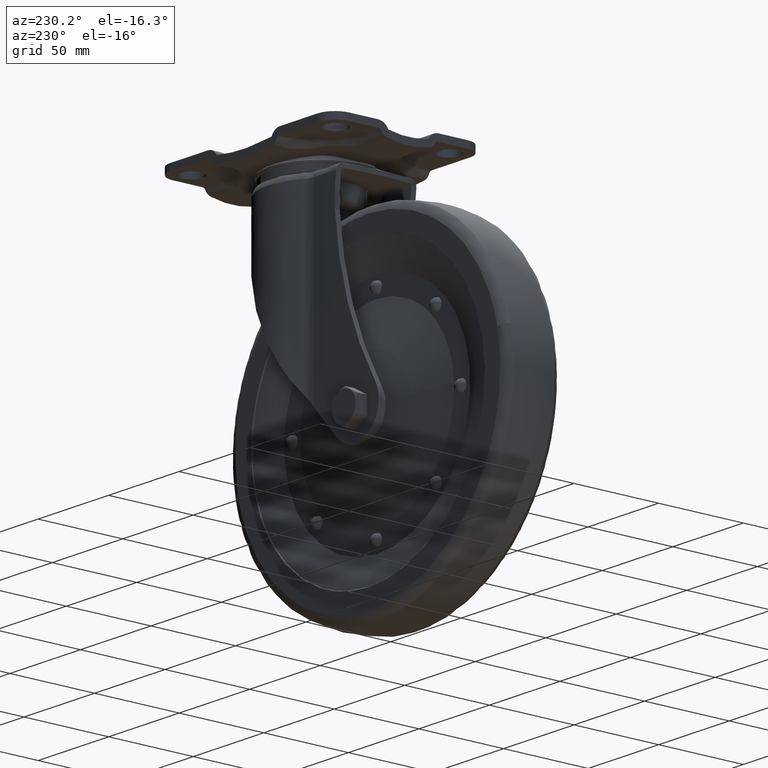
[diagram: clean part render]
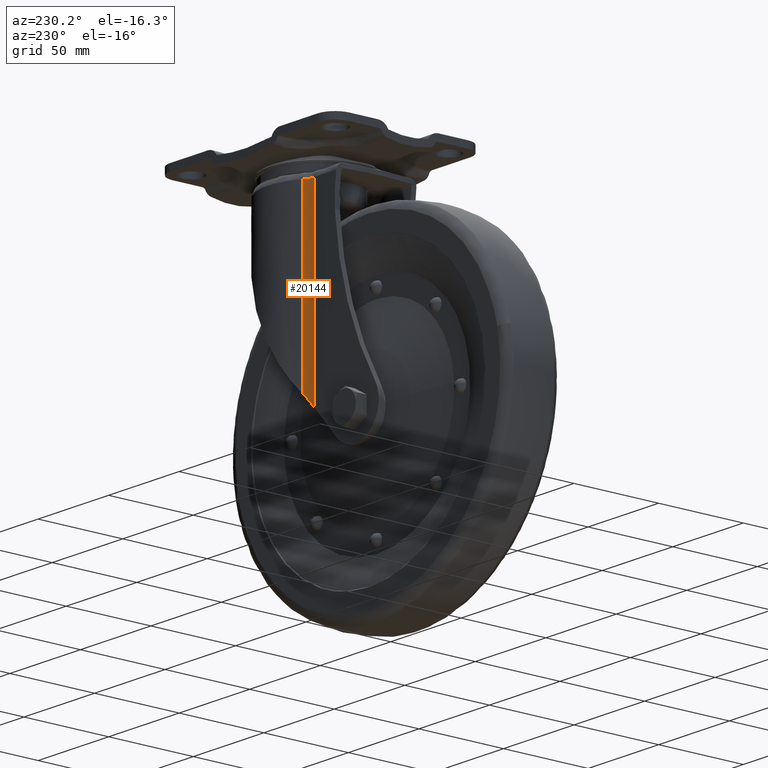
[diagram: same view with one face highlighted and labeled with its STEP entity id]
A machine part, auxiliary view. The second image highlights one B-rep face of the part: STEP entity #20144.
In plain terms, the highlighted face is a freeform B-spline surface patch.
Its self-contained STEP definition (entity closure, byte-faithful):
#20080=CARTESIAN_POINT('',(-17.990495252062956,25.681734473929325,-131.215919056523970));
#20081=CARTESIAN_POINT('',(-17.990495252062956,25.681734473929325,-16.785600623586959));
#20082=CARTESIAN_POINT('',(-20.827834715318321,23.518423796854872,-131.215919056523920));
#20083=CARTESIAN_POINT('',(-20.827834715318321,23.518423796854872,-16.785600623586962));
#20084=CARTESIAN_POINT('',(-24.393740353657712,23.639771618219051,-131.215919056523860));
#20085=CARTESIAN_POINT('',(-24.393740353657712,23.639771618219051,-16.785600623586962));
#20093=(BOUNDED_SURFACE()B_SPLINE_SURFACE(1,2,((#20080,#20082,#20084),(#20081,#20083,#20085)),.UNSPECIFIED.,.F.,.F.,.U.)B_SPLINE_SURFACE_WITH_KNOTS((2,2),(3,3),(0.0,114.430318432937000),(0.0,6.922230103835212),.UNSPECIFIED.)GEOMETRIC_REPRESENTATION_ITEM()RATIONAL_B_SPLINE_SURFACE(((0.997687987550156,0.939337078117443,0.996986477087792),(0.997687987550156,0.939337078117443,0.996986477087792)))REPRESENTATION_ITEM('')SURFACE());
#20094=CARTESIAN_POINT('',(-24.087698548467049,23.634044442204051,-19.576584000000050));
#20095=VERTEX_POINT('',#20094);
#20096=CARTESIAN_POINT('',(-24.087698548467049,23.634044442203351,-128.493008445389190));
#20097=VERTEX_POINT('',#20096);
#20098=CARTESIAN_POINT('',(-24.087698548467049,23.634044442204051,-19.576584000000050));
#20099=CARTESIAN_POINT('',(-24.087698548467049,23.634044442203351,-128.493008445389190));
#20100=QUASI_UNIFORM_CURVE('',1,(#20098,#20099),.UNSPECIFIED.,.F.,.U.);
#20101=EDGE_CURVE('',#20095,#20097,#20100,.T.);
#20102=ORIENTED_EDGE('',*,*,#20101,.F.);
#20103=CARTESIAN_POINT('',(-18.236554349509550,25.500011479553951,-19.576584000000199));
#20104=VERTEX_POINT('',#20103);
#20105=CARTESIAN_POINT('',(-24.087698548467049,23.634044442204051,-19.576584000000050));
#20106=CARTESIAN_POINT('',(-20.861087179802489,23.623054065146849,-19.576584000000054));
#20107=CARTESIAN_POINT('',(-18.236554349281210,25.500011479234669,-19.576584000000050));
#20115=(BOUNDED_CURVE()B_SPLINE_CURVE(2,(#20105,#20106,#20107),.UNSPECIFIED.,.F.,.U.)CURVE()GEOMETRIC_REPRESENTATION_ITEM()QUASI_UNIFORM_CURVE()RATIONAL_B_SPLINE_CURVE((1.0,0.951685713060047,1.0))REPRESENTATION_ITEM(''));
#20116=EDGE_CURVE('',#20095,#20104,#20115,.T.);
#20117=ORIENTED_EDGE('',*,*,#20116,.T.);
#20118=CARTESIAN_POINT('',(-18.236554349509600,25.500011479553951,-121.115201933317810));
#20119=VERTEX_POINT('',#20118);
#20120=CARTESIAN_POINT('',(-18.236554349509600,25.500011479553951,-121.115201933317810));
#20121=CARTESIAN_POINT('',(-18.236554349509550,25.500011479553951,-19.576584000000199));
#20122=QUASI_UNIFORM_CURVE('',1,(#20120,#20121),.UNSPECIFIED.,.F.,.U.);
#20123=EDGE_CURVE('',#20119,#20104,#20122,.T.);
#20124=ORIENTED_EDGE('',*,*,#20123,.F.);
#20125=CARTESIAN_POINT('',(-24.087698548467049,23.634044442203351,-128.493008445389190));
#20126=CARTESIAN_POINT('',(-23.572058544088240,23.632288086252348,-127.865623530504610));
#20127=CARTESIAN_POINT('',(-23.063541637692762,23.670193190795711,-127.241135884250300));
#20128=CARTESIAN_POINT('',(-22.060078144591671,23.821586750123821,-125.997685346530100));
#20129=CARTESIAN_POINT('',(-21.565132824009169,23.935076657348031,-125.378721760253100));
#20130=CARTESIAN_POINT('',(-20.588745481561499,24.239518354054290,-124.146778760782990));
#20131=CARTESIAN_POINT('',(-20.107296713713851,24.430393911567251,-123.533788245599300));
#20132=CARTESIAN_POINT('',(-19.514300377309890,24.722650692360599,-122.772125826107700));
#20133=CARTESIAN_POINT('',(-19.396143870401271,24.783805438492791,-122.620024893561900));
#20134=CARTESIAN_POINT('',(-19.160735104513829,24.911747219762741,-122.316319951993510));
#20135=CARTESIAN_POINT('',(-19.043409834368038,24.978577852651458,-122.164621298177810));
#20136=CARTESIAN_POINT('',(-18.693314050090819,25.187635985411859,-121.710964542168800));
#20137=CARTESIAN_POINT('',(-18.463204719459650,25.337920501461451,-121.411459135203800));
#20138=CARTESIAN_POINT('',(-18.236554349418100,25.500011479136749,-121.115201933198190));
#20139=B_SPLINE_CURVE_WITH_KNOTS('',3,(#20125,#20126,#20127,#20128,#20129,#20130,#20131,#20132,#20133,#20134,#20135,#20136,#20137,#20138),.UNSPECIFIED.,.F.,.U.,(4,2,2,2,2,2,4),(0.0,0.250000000000000,0.500000000000001,0.750000000000001,0.812500000000001,0.875000000000002,1.0),.UNSPECIFIED.);
#20140=EDGE_CURVE('',#20097,#20119,#20139,.T.);
#20141=ORIENTED_EDGE('',*,*,#20140,.F.);
#20142=EDGE_LOOP('',(#20102,#20117,#20124,#20141));
#20143=FACE_OUTER_BOUND('',#20142,.T.);
#20144=ADVANCED_FACE('',(#20143),#20093,.F.);